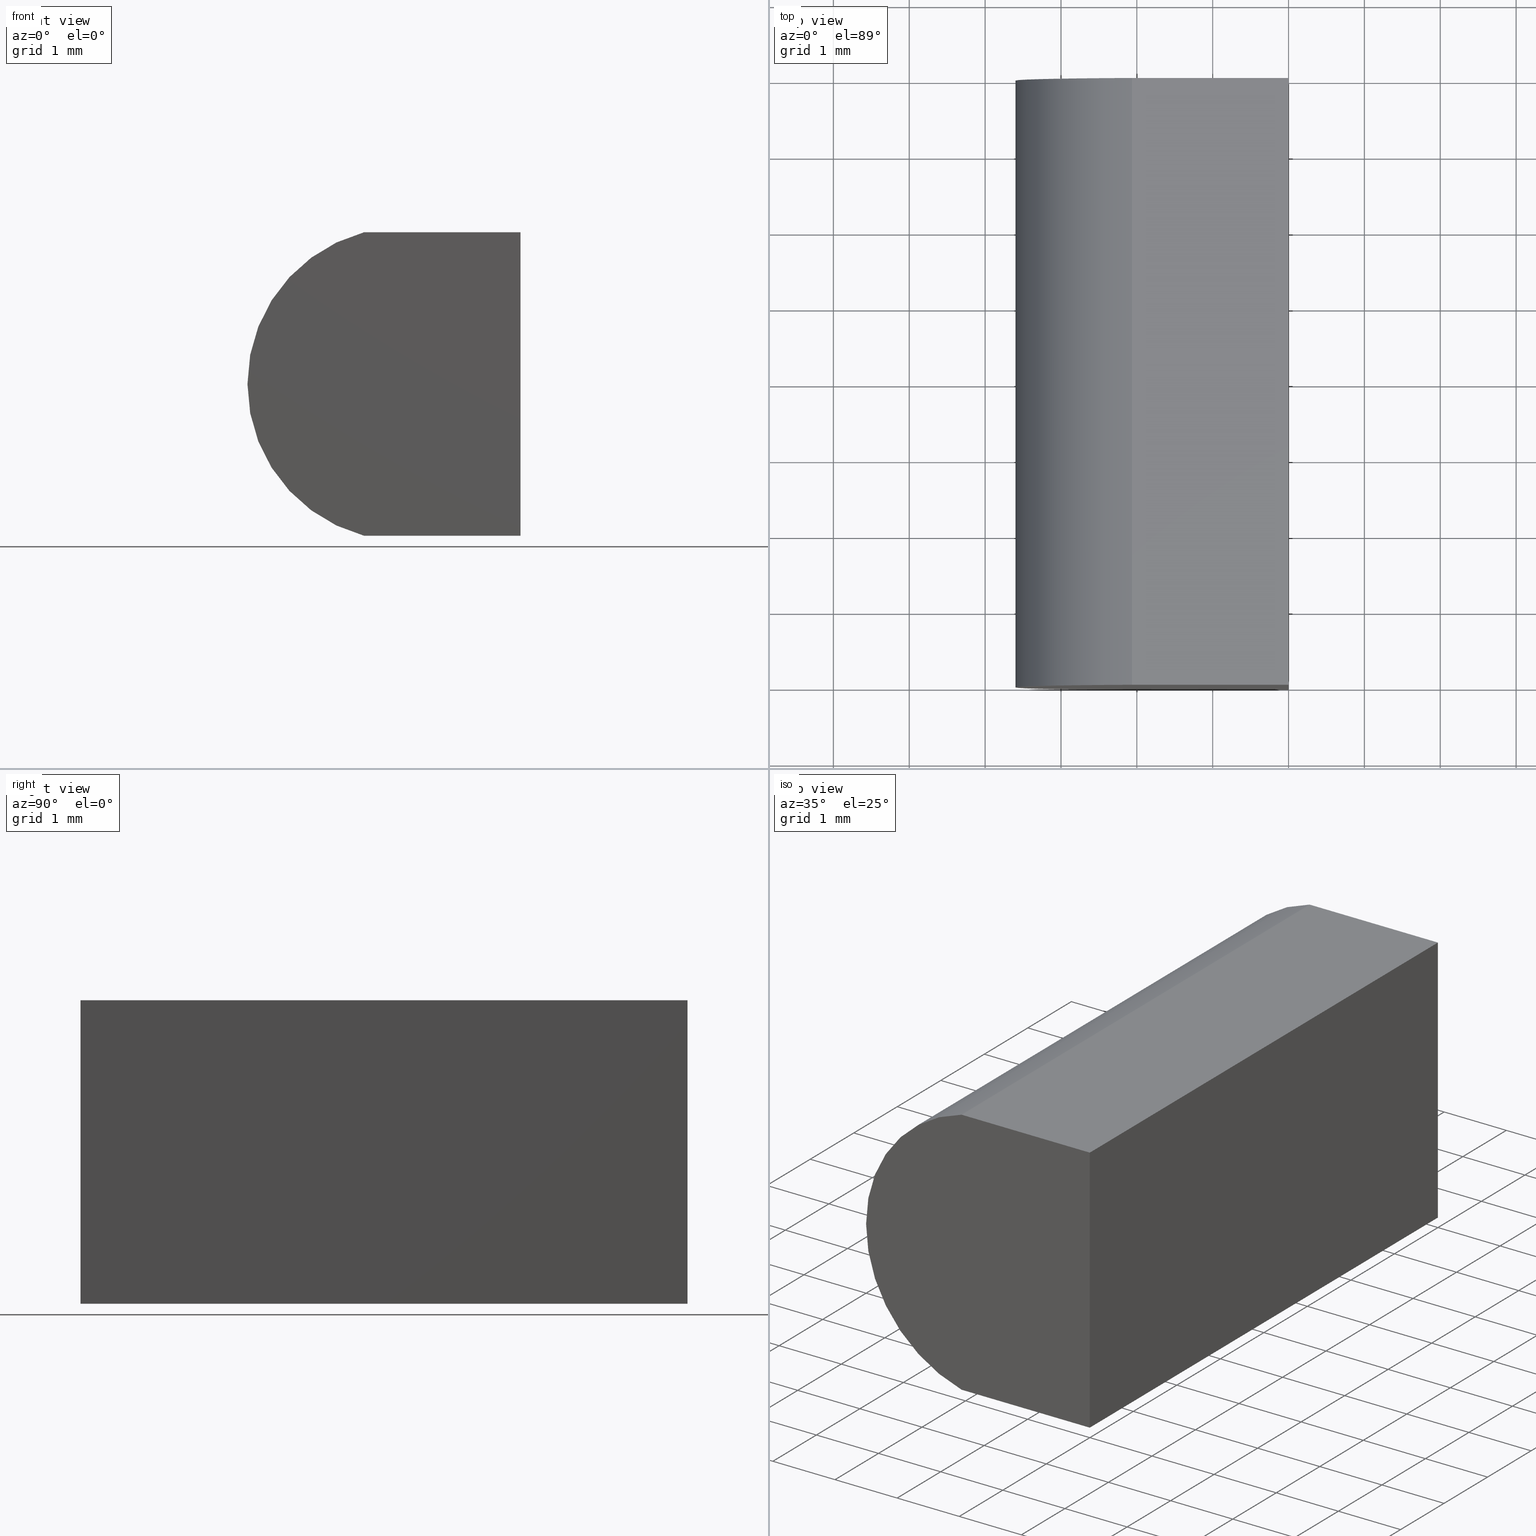
[diagram: canonical four-view strip — front | top / right | iso, engineering-drawing reading convention]
A machine part, canonical four-view strip (front | top / right | iso — engineering-drawing reading convention). The complete STEP part file that produces these views, byte-faithful:
ISO-10303-21;
HEADER;
FILE_DESCRIPTION (( 'STEP AP214' ),
    '1' );
FILE_NAME ('155003.STEP',
    '2019-06-14T05:33:12',
    ( 'user' ),
    ( '΢���й�' ),
    'SwSTEP 2.0',
    'SolidWorks 2016',
    '' );
FILE_SCHEMA (( 'AUTOMOTIVE_DESIGN' ));
ENDSEC;

DATA;
#1 = CARTESIAN_POINT ( 'NONE',  ( 0.0000000000000000000, 0.0000000000000000000, 0.0000000000000000000 ) ) ;
#2 =( GEOMETRIC_REPRESENTATION_CONTEXT ( 3 ) GLOBAL_UNCERTAINTY_ASSIGNED_CONTEXT ( ( #36 ) ) GLOBAL_UNIT_ASSIGNED_CONTEXT ( ( #19, #111, #166 ) ) REPRESENTATION_CONTEXT ( 'NONE', 'WORKASPACE' ) );
#3 = LINE ( 'NONE', #31, #200 ) ;
#4 = CARTESIAN_POINT ( 'NONE',  ( -2.063760245803299300, 8.000000000000000000, 4.000000000000000000 ) ) ;
#5 = EDGE_CURVE ( 'NONE', #27, #176, #193, .T. ) ;
#6 = ORIENTED_EDGE ( 'NONE', *, *, #197, .T. ) ;
#7 = DIRECTION ( 'NONE',  ( 0.0000000000000000000, -0.0000000000000000000, 1.000000000000000000 ) ) ;
#8 = ADVANCED_FACE ( 'NONE', ( #106 ), #156, .F. ) ;
#9 = VECTOR ( 'NONE', #148, 1000.000000000000000 ) ;
#10 = DIRECTION ( 'NONE',  ( 0.0000000000000000000, 1.000000000000000000, 0.0000000000000000000 ) ) ;
#11 = CARTESIAN_POINT ( 'NONE',  ( -1.529999999999999600, 0.0000000000000000000, 2.000000000000000000 ) ) ;
#12 = PRESENTATION_LAYER_ASSIGNMENT (  '', '', ( #61 ) ) ;
#13 = DIRECTION ( 'NONE',  ( 1.000000000000000000, -0.0000000000000000000, -0.0000000000000000000 ) ) ;
#14 = ORIENTED_EDGE ( 'NONE', *, *, #52, .T. ) ;
#15 = CLOSED_SHELL ( 'NONE', ( #178, #172, #22, #8, #83, #202 ) ) ;
#16 = CARTESIAN_POINT ( 'NONE',  ( 0.0000000000000000000, 8.000000000000000000, 4.000000000000000000 ) ) ;
#17 = DIRECTION ( 'NONE',  ( -0.0000000000000000000, -1.000000000000000000, -0.0000000000000000000 ) ) ;
#18 = AXIS2_PLACEMENT_3D ( 'NONE', #16, #147, #51 ) ;
#19 =( LENGTH_UNIT ( ) NAMED_UNIT ( * ) SI_UNIT ( .MILLI., .METRE. ) );
#20 = ORIENTED_EDGE ( 'NONE', *, *, #38, .T. ) ;
#21 = PRODUCT ( '155003', '155003', '', ( #110 ) ) ;
#22 = ADVANCED_FACE ( 'NONE', ( #118 ), #114, .F. ) ;
#23 = VERTEX_POINT ( 'NONE', #136 ) ;
#24 = CARTESIAN_POINT ( 'NONE',  ( 0.0000000000000000000, 8.000000000000000000, 0.0000000000000000000 ) ) ;
#25 = ORIENTED_EDGE ( 'NONE', *, *, #115, .F. ) ;
#26 =( NAMED_UNIT ( * ) PLANE_ANGLE_UNIT ( ) SI_UNIT ( $, .RADIAN. ) );
#27 = VERTEX_POINT ( 'NONE', #157 ) ;
#28 = PRODUCT_DEFINITION ( 'δ֪', '', #79, #117 ) ;
#29 = SURFACE_STYLE_USAGE ( .BOTH. , #158 ) ;
#30 = LINE ( 'NONE', #169, #62 ) ;
#31 = CARTESIAN_POINT ( 'NONE',  ( -2.063760245803299300, 8.000000000000000000, 4.000000000000000000 ) ) ;
#32 = EDGE_LOOP ( 'NONE', ( #50, #204, #160, #14 ) ) ;
#33 = SURFACE_SIDE_STYLE ('',( #105 ) ) ;
#34 = MECHANICAL_DESIGN_GEOMETRIC_PRESENTATION_REPRESENTATION (  '', ( #61 ), #2 ) ;
#35 = ORIENTED_EDGE ( 'NONE', *, *, #52, .F. ) ;
#36 = UNCERTAINTY_MEASURE_WITH_UNIT (LENGTH_MEASURE( 1.000000000000000100E-005 ), #19, 'distance_accuracy_value', 'NONE');
#37 = CARTESIAN_POINT ( 'NONE',  ( -2.063760245803298400, 8.000000000000000000, -4.336808689942017700E-016 ) ) ;
#38 = EDGE_CURVE ( 'NONE', #76, #71, #41, .T. ) ;
#39 = ORIENTED_EDGE ( 'NONE', *, *, #182, .T. ) ;
#40 = UNCERTAINTY_MEASURE_WITH_UNIT (LENGTH_MEASURE( 1.000000000000000100E-005 ), #67, 'distance_accuracy_value', 'NONE');
#41 = CIRCLE ( 'NONE', #186, 2.069999999999999800 ) ;
#42 = AXIS2_PLACEMENT_3D ( 'NONE', #89, #181, #143 ) ;
#43 = VECTOR ( 'NONE', #17, 1000.000000000000000 ) ;
#44 = SHAPE_DEFINITION_REPRESENTATION ( #152, #68 ) ;
#45 = LINE ( 'NONE', #154, #64 ) ;
#46 = AXIS2_PLACEMENT_3D ( 'NONE', #11, #120, #159 ) ;
#47 = ORIENTED_EDGE ( 'NONE', *, *, #5, .T. ) ;
#48 = DIRECTION ( 'NONE',  ( 0.0000000000000000000, 1.000000000000000000, 0.0000000000000000000 ) ) ;
#49 = DIRECTION ( 'NONE',  ( 0.0000000000000000000, 0.0000000000000000000, 1.000000000000000000 ) ) ;
#50 = ORIENTED_EDGE ( 'NONE', *, *, #115, .T. ) ;
#51 = DIRECTION ( 'NONE',  ( -1.000000000000000000, 0.0000000000000000000, -0.0000000000000000000 ) ) ;
#52 = EDGE_CURVE ( 'NONE', #76, #113, #112, .T. ) ;
#53 = LINE ( 'NONE', #1, #59 ) ;
#54 = FACE_OUTER_BOUND ( 'NONE', #86, .T. ) ;
#55 = MANIFOLD_SOLID_BREP ( '͹̨-����1', #15 ) ;
#56 = DIRECTION ( 'NONE',  ( 0.0000000000000000000, 1.000000000000000000, 0.0000000000000000000 ) ) ;
#57 = LINE ( 'NONE', #187, #175 ) ;
#58 = AXIS2_PLACEMENT_3D ( 'NONE', #108, #10, #7 ) ;
#59 = VECTOR ( 'NONE', #168, 1000.000000000000000 ) ;
#60 =( NAMED_UNIT ( * ) SI_UNIT ( $, .STERADIAN. ) SOLID_ANGLE_UNIT ( ) );
#61 = STYLED_ITEM ( 'NONE', ( #144 ), #68 ) ;
#62 = VECTOR ( 'NONE', #13, 1000.000000000000000 ) ;
#63 = FILL_AREA_STYLE_COLOUR ( '', #100 ) ;
#64 = VECTOR ( 'NONE', #188, 1000.000000000000000 ) ;
#65 = APPLICATION_PROTOCOL_DEFINITION ( 'draft international standard', 'automotive_design', 1998, #127 ) ;
#66 = CARTESIAN_POINT ( 'NONE',  ( -2.063760245803298400, 0.0000000000000000000, -4.336808689942017700E-016 ) ) ;
#67 =( LENGTH_UNIT ( ) NAMED_UNIT ( * ) SI_UNIT ( .MILLI., .METRE. ) );
#68 = ADVANCED_BREP_SHAPE_REPRESENTATION ( '155003', ( #55, #138 ), #142 ) ;
#69 = ORIENTED_EDGE ( 'NONE', *, *, #197, .F. ) ;
#70 = ORIENTED_EDGE ( 'NONE', *, *, #165, .T. ) ;
#71 = VERTEX_POINT ( 'NONE', #4 ) ;
#72 = EDGE_LOOP ( 'NONE', ( #146, #93, #203, #25 ) ) ;
#73 = VERTEX_POINT ( 'NONE', #173 ) ;
#74 = PLANE ( 'NONE',  #58 ) ;
#75 = PRODUCT_RELATED_PRODUCT_CATEGORY ( 'part', '', ( #21 ) ) ;
#76 = VERTEX_POINT ( 'NONE', #37 ) ;
#77 = SURFACE_STYLE_FILL_AREA ( #94 ) ;
#78 = APPLICATION_CONTEXT ( 'automotive_design' ) ;
#79 = PRODUCT_DEFINITION_FORMATION_WITH_SPECIFIED_SOURCE ( '�κ�', '', #21, .NOT_KNOWN. ) ;
#80 = FACE_OUTER_BOUND ( 'NONE', #72, .T. ) ;
#81 = ORIENTED_EDGE ( 'NONE', *, *, #165, .F. ) ;
#82 = VECTOR ( 'NONE', #137, 1000.000000000000000 ) ;
#83 = ADVANCED_FACE ( 'NONE', ( #54 ), #74, .T. ) ;
#84 = AXIS2_PLACEMENT_3D ( 'NONE', #199, #198, #133 ) ;
#85 = ORIENTED_EDGE ( 'NONE', *, *, #150, .T. ) ;
#86 = EDGE_LOOP ( 'NONE', ( #39, #20, #85, #70 ) ) ;
#87 = VECTOR ( 'NONE', #96, 1000.000000000000000 ) ;
#88 = APPLICATION_PROTOCOL_DEFINITION ( 'draft international standard', 'automotive_design', 1998, #78 ) ;
#89 = CARTESIAN_POINT ( 'NONE',  ( 0.0000000000000000000, 8.000000000000000000, 0.0000000000000000000 ) ) ;
#90 = FILL_AREA_STYLE_COLOUR ( '', #151 ) ;
#91 = ORIENTED_EDGE ( 'NONE', *, *, #184, .T. ) ;
#92 = STYLED_ITEM ( 'NONE', ( #126 ), #55 ) ;
#93 = ORIENTED_EDGE ( 'NONE', *, *, #180, .F. ) ;
#94 = FILL_AREA_STYLE ('',( #63 ) ) ;
#95 = DIRECTION ( 'NONE',  ( 0.0000000000000000000, 0.0000000000000000000, 1.000000000000000000 ) ) ;
#96 = DIRECTION ( 'NONE',  ( 1.000000000000000000, -0.0000000000000000000, -0.0000000000000000000 ) ) ;
#97 = ORIENTED_EDGE ( 'NONE', *, *, #5, .F. ) ;
#98 = CARTESIAN_POINT ( 'NONE',  ( 0.0000000000000000000, 8.000000000000000000, 0.0000000000000000000 ) ) ;
#99 = MECHANICAL_DESIGN_GEOMETRIC_PRESENTATION_REPRESENTATION (  '', ( #92 ), #124 ) ;
#100 = COLOUR_RGB ( '',1.000000000000000000, 1.000000000000000000, 1.000000000000000000 ) ;
#101 = DIRECTION ( 'NONE',  ( -1.000000000000000000, 0.0000000000000000000, 0.0000000000000000000 ) ) ;
#102 = CARTESIAN_POINT ( 'NONE',  ( -1.529999999999999600, 0.0000000000000000000, 2.000000000000000000 ) ) ;
#103 = DIRECTION ( 'NONE',  ( 1.000000000000000000, 0.0000000000000000000, 0.0000000000000000000 ) ) ;
#104 = SURFACE_STYLE_USAGE ( .BOTH. , #33 ) ;
#105 = SURFACE_STYLE_FILL_AREA ( #122 ) ;
#106 = FACE_OUTER_BOUND ( 'NONE', #161, .T. ) ;
#107 = CARTESIAN_POINT ( 'NONE',  ( 0.0000000000000000000, 8.000000000000000000, 0.0000000000000000000 ) ) ;
#108 = CARTESIAN_POINT ( 'NONE',  ( -1.529999999999999600, 8.000000000000000000, 2.000000000000000000 ) ) ;
#109 = PRESENTATION_LAYER_ASSIGNMENT (  '', '', ( #92 ) ) ;
#110 = PRODUCT_CONTEXT ( 'NONE', #127, 'mechanical' ) ;
#111 =( NAMED_UNIT ( * ) PLANE_ANGLE_UNIT ( ) SI_UNIT ( $, .RADIAN. ) );
#112 = LINE ( 'NONE', #132, #43 ) ;
#113 = VERTEX_POINT ( 'NONE', #66 ) ;
#114 = PLANE ( 'NONE',  #18 ) ;
#115 = EDGE_CURVE ( 'NONE', #113, #179, #170, .T. ) ;
#116 = PLANE ( 'NONE',  #42 ) ;
#117 = PRODUCT_DEFINITION_CONTEXT ( 'detailed design', #78, 'design' ) ;
#118 = FACE_OUTER_BOUND ( 'NONE', #140, .T. ) ;
#119 = FACE_OUTER_BOUND ( 'NONE', #162, .T. ) ;
#120 = DIRECTION ( 'NONE',  ( 0.0000000000000000000, 1.000000000000000000, 0.0000000000000000000 ) ) ;
#121 = ORIENTED_EDGE ( 'NONE', *, *, #174, .T. ) ;
#122 = FILL_AREA_STYLE ('',( #90 ) ) ;
#123 = ORIENTED_EDGE ( 'NONE', *, *, #180, .T. ) ;
#124 =( GEOMETRIC_REPRESENTATION_CONTEXT ( 3 ) GLOBAL_UNCERTAINTY_ASSIGNED_CONTEXT ( ( #40 ) ) GLOBAL_UNIT_ASSIGNED_CONTEXT ( ( #67, #26, #60 ) ) REPRESENTATION_CONTEXT ( 'NONE', 'WORKASPACE' ) );
#125 = CARTESIAN_POINT ( 'NONE',  ( 0.0000000000000000000, 8.000000000000000000, 4.000000000000000000 ) ) ;
#126 = PRESENTATION_STYLE_ASSIGNMENT (( #104 ) ) ;
#127 = APPLICATION_CONTEXT ( 'automotive_design' ) ;
#128 = CARTESIAN_POINT ( 'NONE',  ( -1.529999999999999600, 8.000000000000000000, 2.000000000000000000 ) ) ;
#129 = AXIS2_PLACEMENT_3D ( 'NONE', #102, #48, #194 ) ;
#130 = CARTESIAN_POINT ( 'NONE',  ( 0.0000000000000000000, 8.000000000000000000, 4.000000000000000000 ) ) ;
#131 = VECTOR ( 'NONE', #185, 1000.000000000000000 ) ;
#132 = CARTESIAN_POINT ( 'NONE',  ( -2.063760245803298400, 8.000000000000000000, -4.336808689942017700E-016 ) ) ;
#133 = DIRECTION ( 'NONE',  ( 0.0000000000000000000, 0.0000000000000000000, -1.000000000000000000 ) ) ;
#134 = CARTESIAN_POINT ( 'NONE',  ( 0.0000000000000000000, 0.0000000000000000000, 4.000000000000000000 ) ) ;
#135 = PLANE ( 'NONE',  #129 ) ;
#136 = CARTESIAN_POINT ( 'NONE',  ( 0.0000000000000000000, 0.0000000000000000000, 0.0000000000000000000 ) ) ;
#137 = DIRECTION ( 'NONE',  ( -0.0000000000000000000, -1.000000000000000000, -0.0000000000000000000 ) ) ;
#138 = AXIS2_PLACEMENT_3D ( 'NONE', #139, #95, #103 ) ;
#139 = CARTESIAN_POINT ( 'NONE',  ( 0.0000000000000000000, 0.0000000000000000000, 0.0000000000000000000 ) ) ;
#140 = EDGE_LOOP ( 'NONE', ( #121, #97, #190, #91 ) ) ;
#141 = FACE_OUTER_BOUND ( 'NONE', #32, .T. ) ;
#142 =( GEOMETRIC_REPRESENTATION_CONTEXT ( 3 ) GLOBAL_UNCERTAINTY_ASSIGNED_CONTEXT ( ( #155 ) ) GLOBAL_UNIT_ASSIGNED_CONTEXT ( ( #171, #177, #192 ) ) REPRESENTATION_CONTEXT ( 'NONE', 'WORKASPACE' ) );
#143 = DIRECTION ( 'NONE',  ( 1.000000000000000000, 0.0000000000000000000, -0.0000000000000000000 ) ) ;
#144 = PRESENTATION_STYLE_ASSIGNMENT (( #29 ) ) ;
#145 = ORIENTED_EDGE ( 'NONE', *, *, #182, .F. ) ;
#146 = ORIENTED_EDGE ( 'NONE', *, *, #191, .F. ) ;
#147 = DIRECTION ( 'NONE',  ( 0.0000000000000000000, 0.0000000000000000000, -1.000000000000000000 ) ) ;
#148 = DIRECTION ( 'NONE',  ( -0.0000000000000000000, -1.000000000000000000, -0.0000000000000000000 ) ) ;
#149 = CYLINDRICAL_SURFACE ( 'NONE', #84, 2.069999999999999800 ) ;
#150 = EDGE_CURVE ( 'NONE', #71, #27, #195, .T. ) ;
#151 = COLOUR_RGB ( '',1.000000000000000000, 1.000000000000000000, 1.000000000000000000 ) ;
#152 = PRODUCT_DEFINITION_SHAPE ( 'NONE', 'NONE',  #28 ) ;
#153 = ORIENTED_EDGE ( 'NONE', *, *, #191, .T. ) ;
#154 = CARTESIAN_POINT ( 'NONE',  ( 0.0000000000000000000, 0.0000000000000000000, 0.0000000000000000000 ) ) ;
#155 = UNCERTAINTY_MEASURE_WITH_UNIT (LENGTH_MEASURE( 1.000000000000000100E-005 ), #171, 'distance_accuracy_value', 'NONE');
#156 = PLANE ( 'NONE',  #163 ) ;
#157 = CARTESIAN_POINT ( 'NONE',  ( 0.0000000000000000000, 8.000000000000000000, 4.000000000000000000 ) ) ;
#158 = SURFACE_SIDE_STYLE ('',( #77 ) ) ;
#159 = DIRECTION ( 'NONE',  ( 0.0000000000000000000, 0.0000000000000000000, 1.000000000000000000 ) ) ;
#160 = ORIENTED_EDGE ( 'NONE', *, *, #38, .F. ) ;
#161 = EDGE_LOOP ( 'NONE', ( #123, #69, #81, #47 ) ) ;
#162 = EDGE_LOOP ( 'NONE', ( #153, #35, #145, #6 ) ) ;
#163 = AXIS2_PLACEMENT_3D ( 'NONE', #98, #101, #167 ) ;
#164 = DIRECTION ( 'NONE',  ( -1.000000000000000000, 0.0000000000000000000, 0.0000000000000000000 ) ) ;
#165 = EDGE_CURVE ( 'NONE', #27, #73, #189, .T. ) ;
#166 =( NAMED_UNIT ( * ) SI_UNIT ( $, .STERADIAN. ) SOLID_ANGLE_UNIT ( ) );
#167 = DIRECTION ( 'NONE',  ( 0.0000000000000000000, 0.0000000000000000000, 1.000000000000000000 ) ) ;
#168 = DIRECTION ( 'NONE',  ( -0.0000000000000000000, -0.0000000000000000000, -1.000000000000000000 ) ) ;
#169 = CARTESIAN_POINT ( 'NONE',  ( 0.0000000000000000000, 0.0000000000000000000, 4.000000000000000000 ) ) ;
#170 = CIRCLE ( 'NONE', #46, 2.069999999999999800 ) ;
#171 =( LENGTH_UNIT ( ) NAMED_UNIT ( * ) SI_UNIT ( .MILLI., .METRE. ) );
#172 = ADVANCED_FACE ( 'NONE', ( #141 ), #149, .T. ) ;
#173 = CARTESIAN_POINT ( 'NONE',  ( 0.0000000000000000000, 8.000000000000000000, 0.0000000000000000000 ) ) ;
#174 = EDGE_CURVE ( 'NONE', #179, #176, #30, .T. ) ;
#175 = VECTOR ( 'NONE', #164, 1000.000000000000000 ) ;
#176 = VERTEX_POINT ( 'NONE', #134 ) ;
#177 =( NAMED_UNIT ( * ) PLANE_ANGLE_UNIT ( ) SI_UNIT ( $, .RADIAN. ) );
#178 = ADVANCED_FACE ( 'NONE', ( #119 ), #116, .F. ) ;
#179 = VERTEX_POINT ( 'NONE', #183 ) ;
#180 = EDGE_CURVE ( 'NONE', #176, #23, #53, .T. ) ;
#181 = DIRECTION ( 'NONE',  ( 0.0000000000000000000, -0.0000000000000000000, 1.000000000000000000 ) ) ;
#182 = EDGE_CURVE ( 'NONE', #73, #76, #57, .T. ) ;
#183 = CARTESIAN_POINT ( 'NONE',  ( -2.063760245803299300, 0.0000000000000000000, 4.000000000000000000 ) ) ;
#184 = EDGE_CURVE ( 'NONE', #71, #179, #3, .T. ) ;
#185 = DIRECTION ( 'NONE',  ( -0.0000000000000000000, -0.0000000000000000000, -1.000000000000000000 ) ) ;
#186 = AXIS2_PLACEMENT_3D ( 'NONE', #128, #56, #49 ) ;
#187 = CARTESIAN_POINT ( 'NONE',  ( 0.0000000000000000000, 8.000000000000000000, 0.0000000000000000000 ) ) ;
#188 = DIRECTION ( 'NONE',  ( -1.000000000000000000, 0.0000000000000000000, 0.0000000000000000000 ) ) ;
#189 = LINE ( 'NONE', #107, #131 ) ;
#190 = ORIENTED_EDGE ( 'NONE', *, *, #150, .F. ) ;
#191 = EDGE_CURVE ( 'NONE', #23, #113, #45, .T. ) ;
#192 =( NAMED_UNIT ( * ) SI_UNIT ( $, .STERADIAN. ) SOLID_ANGLE_UNIT ( ) );
#193 = LINE ( 'NONE', #130, #9 ) ;
#194 = DIRECTION ( 'NONE',  ( 0.0000000000000000000, -0.0000000000000000000, 1.000000000000000000 ) ) ;
#195 = LINE ( 'NONE', #125, #87 ) ;
#196 = LINE ( 'NONE', #24, #82 ) ;
#197 = EDGE_CURVE ( 'NONE', #73, #23, #196, .T. ) ;
#198 = DIRECTION ( 'NONE',  ( -0.0000000000000000000, -1.000000000000000000, -0.0000000000000000000 ) ) ;
#199 = CARTESIAN_POINT ( 'NONE',  ( -1.529999999999999600, 8.000000000000000000, 2.000000000000000000 ) ) ;
#200 = VECTOR ( 'NONE', #201, 1000.000000000000000 ) ;
#201 = DIRECTION ( 'NONE',  ( -0.0000000000000000000, -1.000000000000000000, -0.0000000000000000000 ) ) ;
#202 = ADVANCED_FACE ( 'NONE', ( #80 ), #135, .F. ) ;
#203 = ORIENTED_EDGE ( 'NONE', *, *, #174, .F. ) ;
#204 = ORIENTED_EDGE ( 'NONE', *, *, #184, .F. ) ;
ENDSEC;
END-ISO-10303-21;
